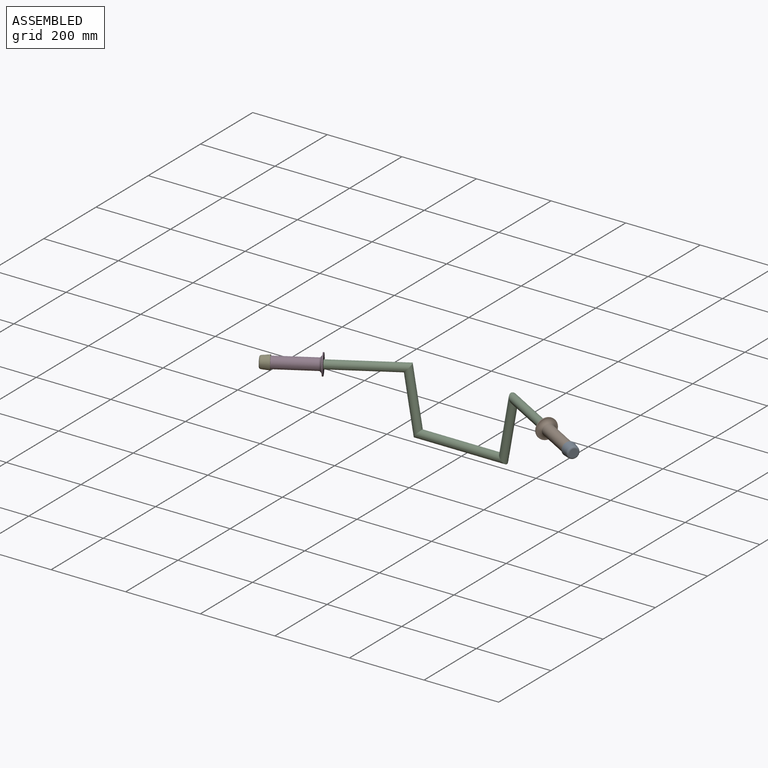
[diagram: assembled view]
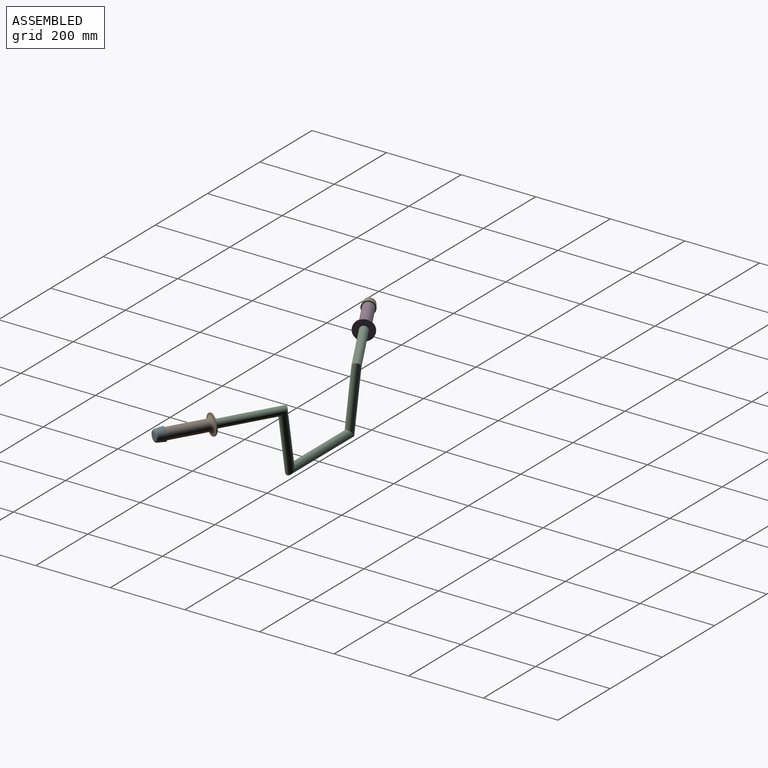
[diagram: assembled view, second angle]
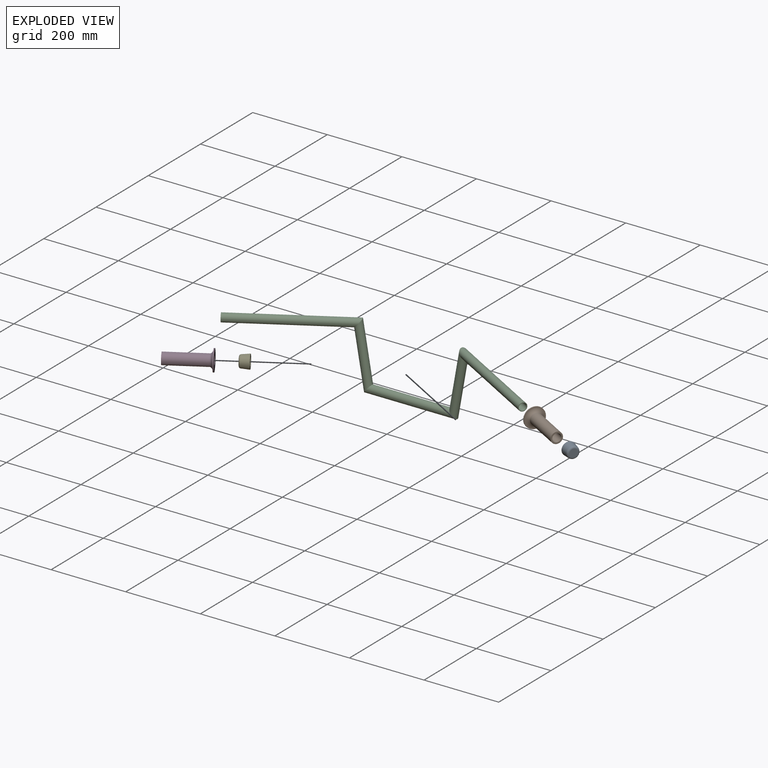
[diagram: exploded view]
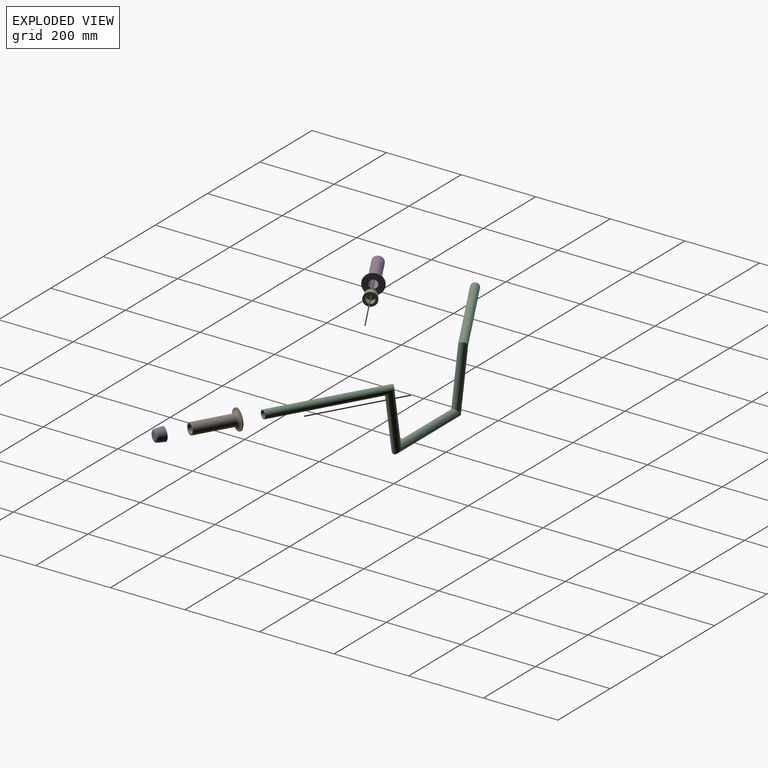
[diagram: exploded view, second angle]
ASSEMBLY  parts=5 mates=4
PART A: 6 faces, bbox 35.6x25.4x35.6 mm
  f0: plane 35.56x35.56mm, normal (0,1,0), area 605.2mm2, adj f2,f4
  f1: plane 21.29x21.29mm, normal (0,-1,0), area 355.8mm2, adj f3
  f2: cone r=17.78mm half-angle=5.7deg, axis (0,1,0), area 2201.2mm2, adj f0,f3
  f3: torus R=10.64mm, axis (0,-1,0), area 645.8mm2, adj f1,f2
  f4: cylinder r=11.11mm len=22.23mm, axis (0,1,0), area 1330.1mm2, adj f0,f5
  f5: plane 22.23x22.23mm, normal (0,1,0), area 387.9mm2, adj f4
PART B: 6 faces, bbox 116.8x75.8x75.8 mm
  f0: plane 53.98x53.98mm, normal (-1,0,0), area 1900.2mm2, adj f4,f5
  f1: plane 29.97x29.97mm, normal (1,0,0), area 317.6mm2, adj f2,f5
  f2: cylinder r=14.99mm len=107.95mm, axis (1,0,0), area 10164.6mm2, adj f1,f3
  f3: torus R=26.01mm, axis (1,0,0), area 1834.1mm2, adj f2,f4
  f4: cylinder r=26.99mm len=53.98mm, axis (1,0,0), area 430.7mm2, adj f0,f3
  f5: cylinder r=11.11mm len=116.84mm, axis (1,0,0), area 8158mm2, adj f0,f1
PART C: 19 faces, bbox 821.4x177.1x174.9 mm
  f0: cylinder r=9.53mm len=171.68mm, axis (-0.17,0,0.98), area 9222.8mm2, adj f1,f5,f17,f18
  f1: cylinder r=9.53mm len=244.63mm, axis (-1,0,0), area 13986.3mm2, adj f0,f2,f14,f15,f17
  f2: plane 19.04x9.97mm, normal (1,0,0), area 38.8mm2, adj f1,f4,f14
  f3: plane 2.78x0.12mm, normal (1,0,0), area 0.2mm2, adj f10,f11
  f4: cylinder r=11.11mm len=19.05mm, axis (-1,0,0), area 158.3mm2, adj f2,f14
  f5: cylinder r=9.53mm len=279.4mm, axis (-0.87,-0.5,0), area 18159.7mm2, adj f0,f6
  f6: plane 22.23x19.25mm, normal (-0.87,-0.5,0), area 102.9mm2, adj f5,f8
  f7: plane 2.78x0.12mm, normal (1,0,0), area 0.2mm2, adj f10,f11
  f8: cylinder r=11.11mm len=282.17mm, axis (-0.87,-0.5,0), area 21186.4mm2, adj f6,f9
  f9: cylinder r=11.11mm len=174.85mm, axis (-0.17,0,0.98), area 10805mm2, adj f8,f10
  f10: cylinder r=11.11mm len=247.28mm, axis (-1,0,0), area 15969.8mm2, adj f3,f7,f9,f11
  f11: cylinder r=11.11mm len=174.88mm, axis (0.17,0,0.98), area 10805.9mm2, adj f3,f7,f10,f12
  f12: cylinder r=11.11mm len=284.53mm, axis (0.87,-0.5,0), area 21368.7mm2, adj f11,f13
  f13: plane 22.23x19.25mm, normal (0.87,-0.5,0), area 102.9mm2, adj f12,f16
  f14: cylinder r=9.53mm len=171.65mm, axis (0.17,0,0.98), area 9173.7mm2, adj f1,f2,f4,f15,f16
  f15: cylinder r=9.53mm len=2.49mm, axis (0.17,0,0.98), area 1.3mm2, adj f1,f14
  f16: cylinder r=9.53mm len=281.76mm, axis (0.87,-0.5,0), area 18289.1mm2, adj f13,f14
  f17: plane 18.79x9.51mm, normal (-1,0,0), area 37.1mm2, adj f0,f1,f18
  f18: cylinder r=11.11mm len=18.42mm, axis (1,0,0), area 93.4mm2, adj f0,f17
PART D: same geometry as B
PART E: same geometry as A
PLACE A rot(axis=(0,0,1),60deg) t=(388.46,-143.56,152.4)mm
PLACE B rot(axis=(-0.96,0.26,-0.11),135.5deg) t=(388.46,-143.56,152.4)mm
PLACE C at identity fixed
PLACE D rot(axis=(-0.05,0.2,-0.98),150.6deg) t=(-405.32,-151.72,152.4)mm
PLACE E rot(axis=(0,0,-1),60deg) t=(-405.32,-151.72,152.4)mm
MATE revolute D.f2 <-> E.f2  axis (-0.87,-0.5,0) through (-405.32,-151.72,152.4)mm
MATE fastened C.f16 <-> A.f2  axis (0.87,-0.5,0) through (404.95,-153.08,152.4)mm
MATE revolute B.f2 <-> A.f2  axis (0.87,-0.5,0) through (388.46,-143.56,152.4)mm
MATE fastened E.f2 <-> C.f8  axis (0.87,0.5,0) through (-405.32,-151.72,152.4)mm
